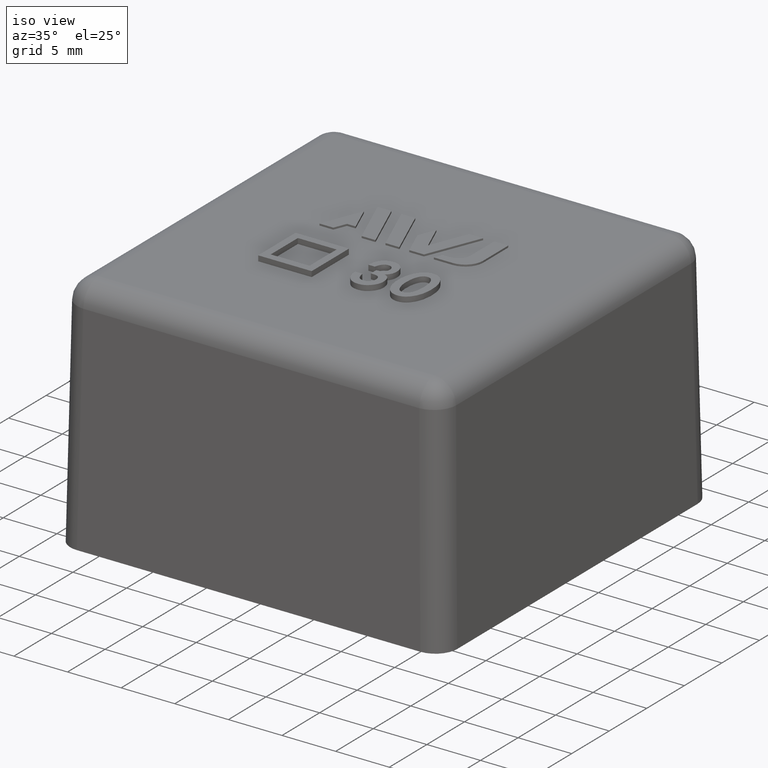
[diagram: clean part render]
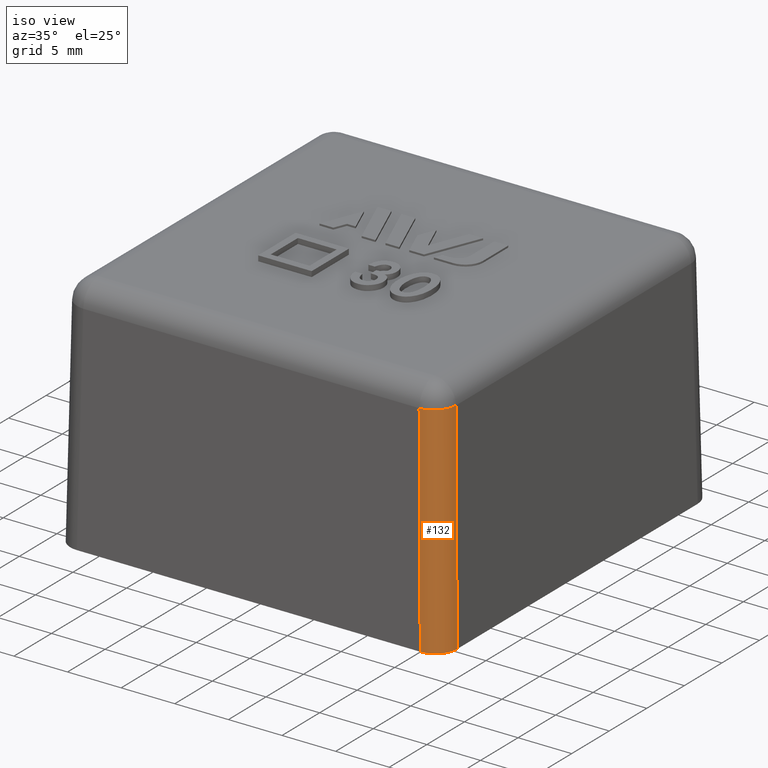
[diagram: same view with one face highlighted and labeled with its STEP entity id]
A machine part, iso view. The second image highlights one B-rep face of the part: STEP entity #132.
In plain terms, the highlighted cylindrical surface (edge-blend (fillet) strip) has radius 2.026 mm, axis along (-0.0174, 0.0174, 0.9997).
Its self-contained STEP definition (entity closure, byte-faithful):
#132 = ADVANCED_FACE( '', ( #278 ), #279, .T. );
#278 = FACE_OUTER_BOUND( '', #452, .T. );
#279 = CYLINDRICAL_SURFACE( '', #453, 2.02600000000000 );
#452 = EDGE_LOOP( '', ( #969, #970, #971, #972 ) );
#453 = AXIS2_PLACEMENT_3D( '', #973, #974, #975 );
#969 = ORIENTED_EDGE( '', *, *, #1323, .F. );
#970 = ORIENTED_EDGE( '', *, *, #1316, .T. );
#971 = ORIENTED_EDGE( '', *, *, #1324, .F. );
#972 = ORIENTED_EDGE( '', *, *, #1325, .F. );
#973 = CARTESIAN_POINT( '', ( 16.0063253799846, -16.0063253799846, -0.0706956179537099 ) );
#974 = DIRECTION( '', ( -0.0174497491606827, 0.0174497491606827, 0.999695459881888 ) );
#975 = DIRECTION( '', ( -0.999847695156391, 0.000000000000000, -0.0174524064372835 ) );
#1316 = EDGE_CURVE( '', #1591, #1596, #1598, .T. );
#1323 = EDGE_CURVE( '', #1591, #1607, #1608, .F. );
#1324 = EDGE_CURVE( '', #1609, #1596, #1610, .T. );
#1325 = EDGE_CURVE( '', #1607, #1609, #1611, .F. );
#1591 = VERTEX_POINT( '', #2110 );
#1596 = VERTEX_POINT( '', #2116 );
#1598 = CIRCLE( '', #2118, 2.02600000000000 );
#1607 = VERTEX_POINT( '', #2129 );
#1608 = LINE( '', #2130, #2131 );
#1609 = VERTEX_POINT( '', #2132 );
#1610 = LINE( '', #2133, #2134 );
#1611 = ELLIPSE( '', #2135, 2.02661718623727, 2.02600000000000 );
#2110 = CARTESIAN_POINT( '', ( 17.6771431983242, -15.6514517679374, 20.2953585754419 ) );
#2116 = CARTESIAN_POINT( '', ( 15.6514517679373, -17.6771431983242, 20.2953585754419 ) );
#2118 = AXIS2_PLACEMENT_3D( '', #2420, #2421, #2422 );
#2129 = CARTESIAN_POINT( '', ( 18.0314000000000, -16.0057085696132, 0.000000000000000 ) );
#2130 = CARTESIAN_POINT( '', ( 18.0320168103714, -16.0063253799846, -0.0353370425117735 ) );
#2131 = VECTOR( '', #2437, 1000.00000000000 );
#2132 = CARTESIAN_POINT( '', ( 16.0057085696132, -18.0314000000000, 0.000000000000000 ) );
#2133 = CARTESIAN_POINT( '', ( 15.9953444829296, -18.0210359133164, 0.593758128439422 ) );
#2134 = VECTOR( '', #2438, 1000.00000000000 );
#2135 = AXIS2_PLACEMENT_3D( '', #2439, #2440, #2441 );
#2420 = CARTESIAN_POINT( '', ( 15.6514517679373, -15.6514517679374, 20.2600000000000 ) );
#2421 = DIRECTION( '', ( 0.0174497491606827, -0.0174497491606827, -0.999695459881888 ) );
#2422 = DIRECTION( '', ( -0.999847695156391, 0.000000000000000, -0.0174524064372835 ) );
#2437 = DIRECTION( '', ( -0.0174497491606827, 0.0174497491606827, 0.999695459881887 ) );
#2438 = DIRECTION( '', ( -0.0174497491606827, 0.0174497491606827, 0.999695459881887 ) );
#2439 = CARTESIAN_POINT( '', ( 16.0050913833830, -16.0050913833830, 0.000000000000000 ) );
#2440 = DIRECTION( '', ( 0.000000000000000, 0.000000000000000, 1.00000000000000 ) );
#2441 = DIRECTION( '', ( 0.707106781186548, -0.707106781186548, 0.000000000000000 ) );